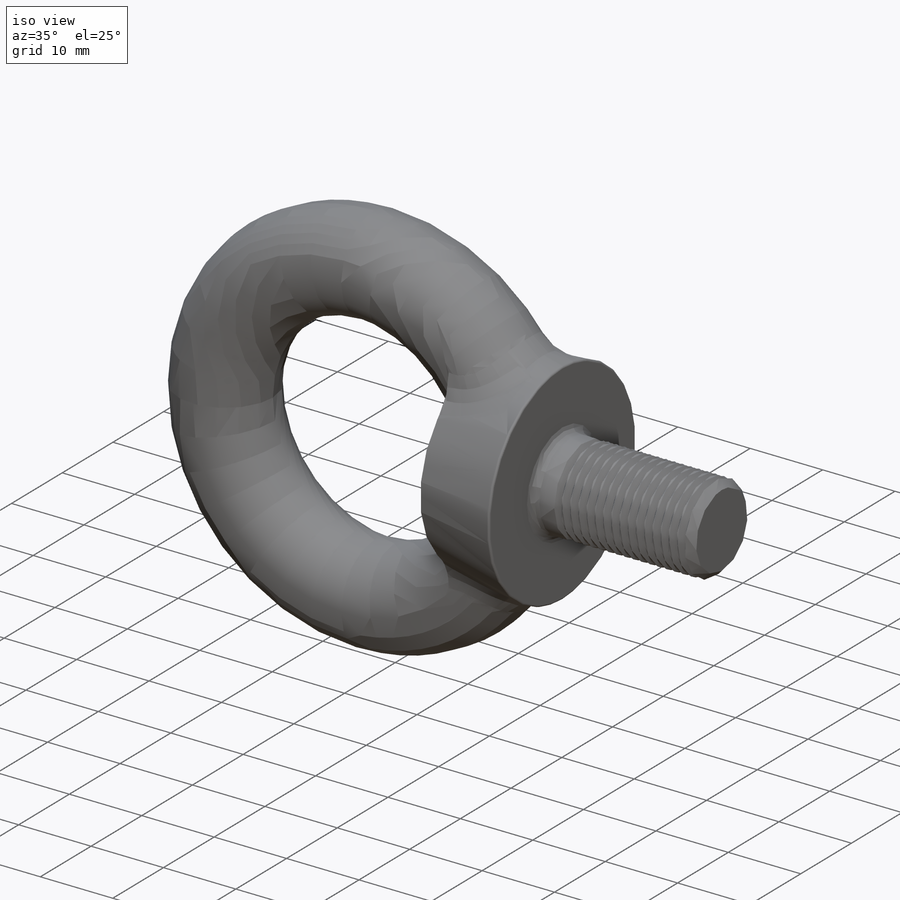
[diagram: iso view]
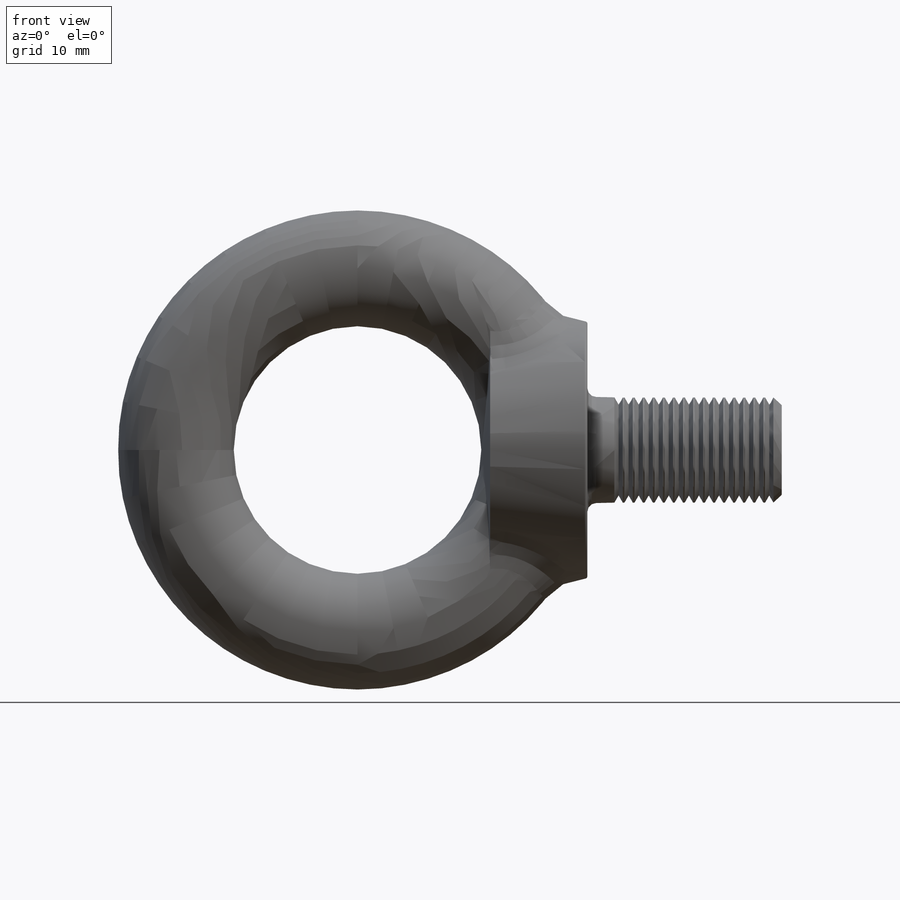
[diagram: front view]
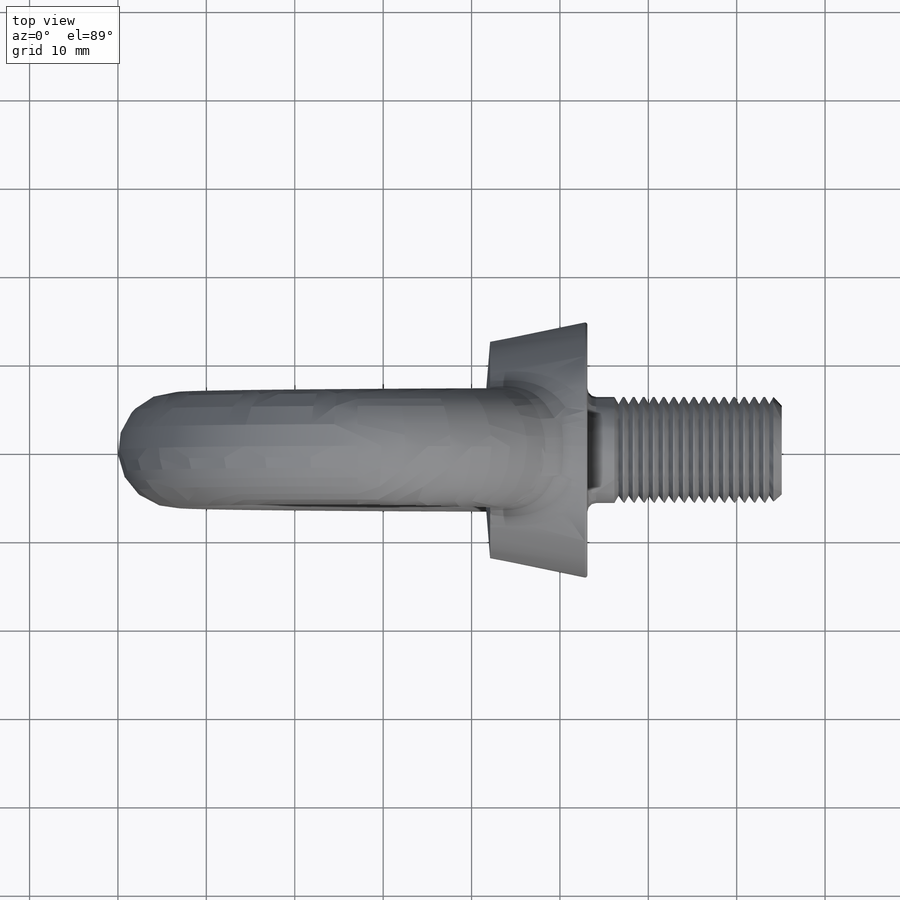
[diagram: top view]
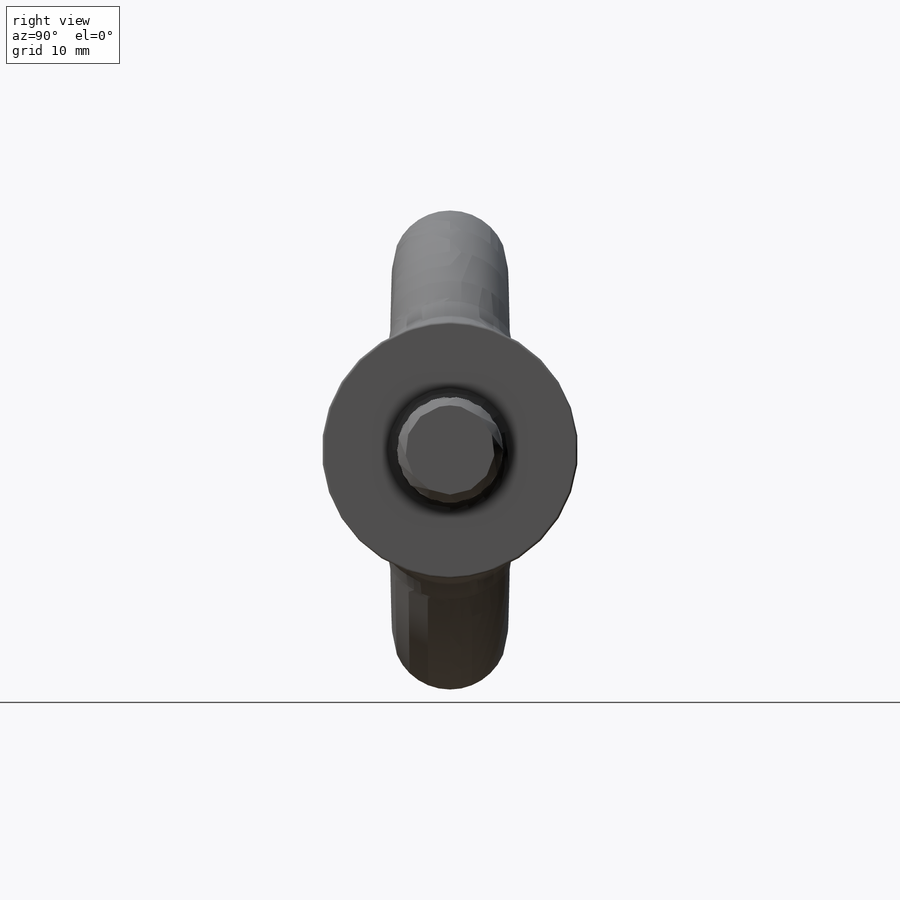
[diagram: right view]
SOLIDWORKS PART (.sldprt)
format: sldprt  version: not decoded by parser v0  size: 518,144 bytes
history: native  units: mm
features: sketch x12, mirror x3, fillet x3, revolve x2, plane x2, material x1, extrude x1, cut_extrude x1, thread x1, cut_revolve x1, pattern_linear x1 (+15 scaffold rows collapsed; 1 parser-record rows omitted)
feature tree (44):
  parser-record x1  (decoder bookkeeping rows leaked as tree rows — omitted from the tree; the rows remain in map.json)
  scaffold x15  (default folders/planes/origin — collapsed)
  material  "材质 <未指定>"
  sketch  "Sketch1"  dims[c1.D1=~66.739271mm c1.H1=7.0mm c2.D1=2.2mm c2.D2=29.1mm c2.d2-1=18.3mm c2.D3=53.1mm c2.H1=11.0mm]
  revolve  "Revolve1"  Angle=360deg
  sketch  "Sketch4"  dims[d1=13.1mm]
  sketch  "Sketch5"  dims[c1.D2=~3.545437mm c1.D1=20.0mm c2.D2=20.0mm c2.D3=10.0mm c2.D1=28.0mm c3.D2=10.0mm c3.h=18.0mm c4.h=18.0mm c5.h=26.0mm c5.D2=10.0mm]
  sketch  "Sketch2"  dims[d1=13.1mm b=14.0mm]
  sketch  "Sketch6"  dims[D1=~10.060988mm]
  plane  "Plane1"
  sketch  "Sketch3"
  mirror  "Mirror1"
  fillet  "Fillet1"  Radius=6mm
  sketch  "Sketch7"  dims[d=12.0mm]
  extrude  "Extrude1"  Depth=2mm
  sketch  "Sketch8"  dims[D1=29.1mm]
  cut_extrude  "Cut-Extrude1"  [1 undecoded]
  sketch  "Sketch9"
  mirror  "Loft2"
  sketch  "Sketch10"
  mirror  "Loft3"
  fillet  "Fillet2"  Radius=0.25mm
  plane  "Plane2"  Offset=3.5mm a=3.5mm
  sketch  "Sketch11"  dims[c1.D1=8.0mm c1.D2=~6.029008mm c1.d=12.0mm c1.d1=10.106mm c1.l=22.0mm c2.D2=~7.422507mm c3.D2=45.0deg]
  revolve  "Revolve2"  [1 undecoded]
  thread  "ThreadCosmetic1"  Diameter=18.5mm  [1 undecoded]
  fillet  "Fillet3"  Radius=1mm
  sketch  "Sketch12"  dims[D1=0.947mm]
  cut_revolve  "Cut-Revolve10"  Angle=360deg
  pattern_linear  "LPattern10"  Count1=16 Count2=1 Spacing1=1.1364mm Spacing2=50mm pitch=1.1364mm ConfigurationName=0mm CopiedFlag=1 PartNumberID=0mm
decode coverage: 17 of 25 modeling features carry decoded parameters
note: ~ marks probable driven/reference dimensions
note: 3 parameter values undecoded
note: suppression state not decoded; provenance and decode notes live in map.json
